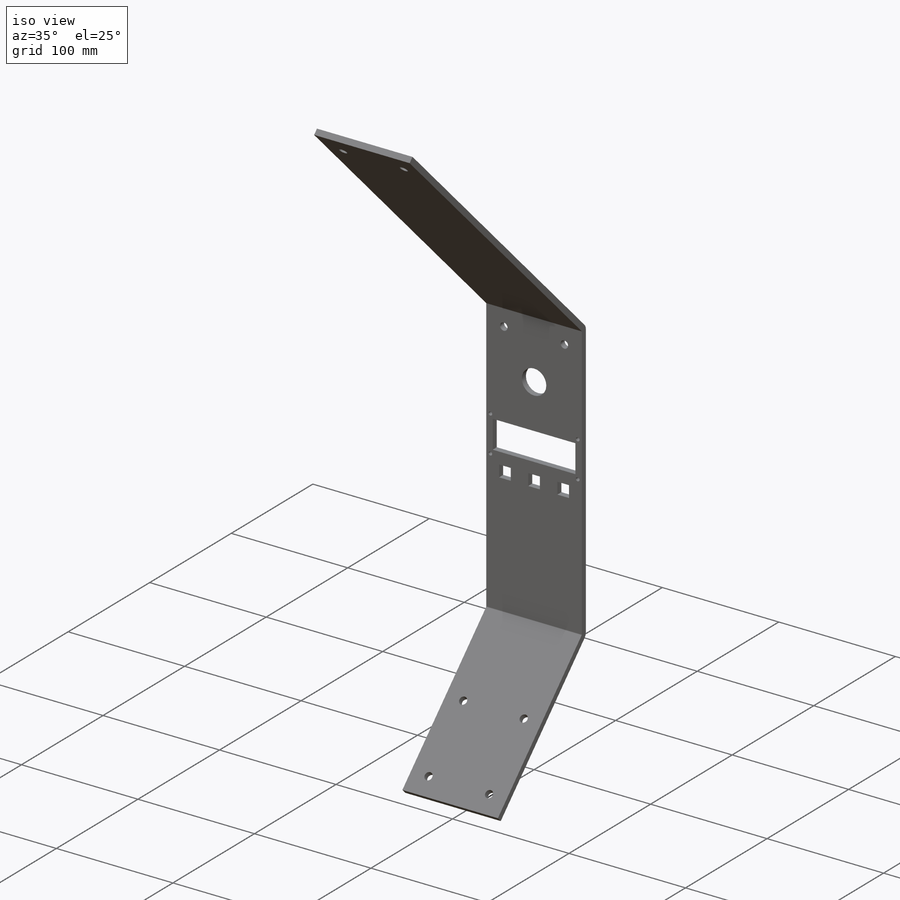
[diagram: iso view]
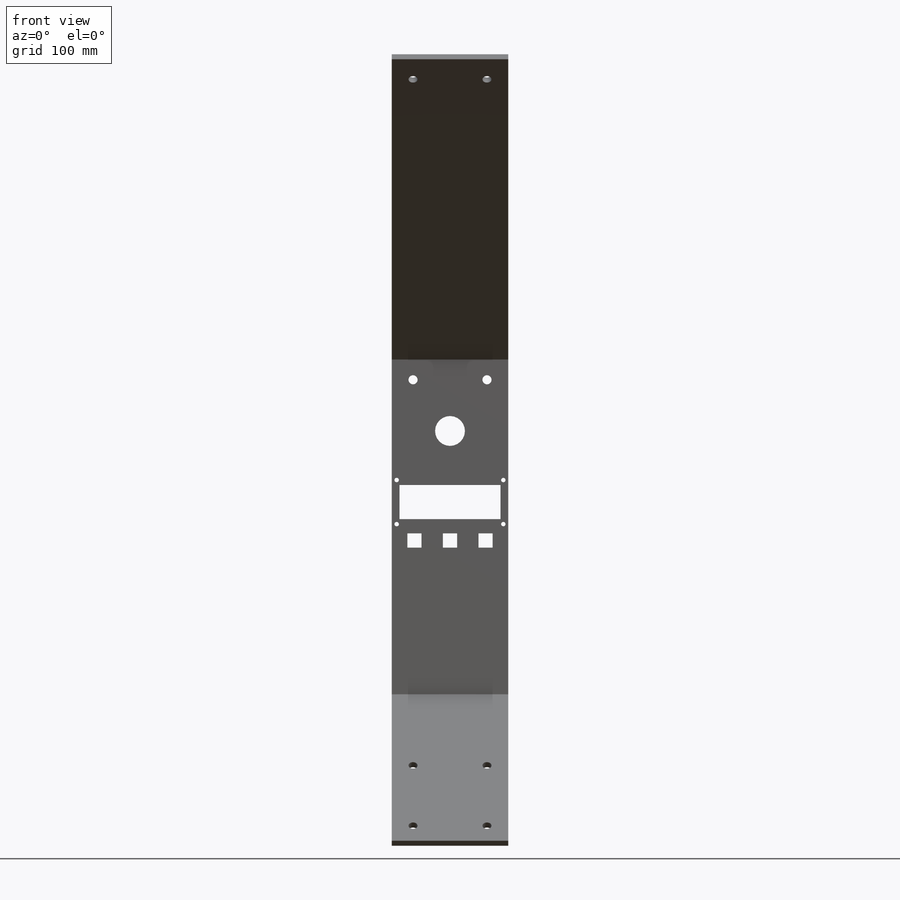
[diagram: front view]
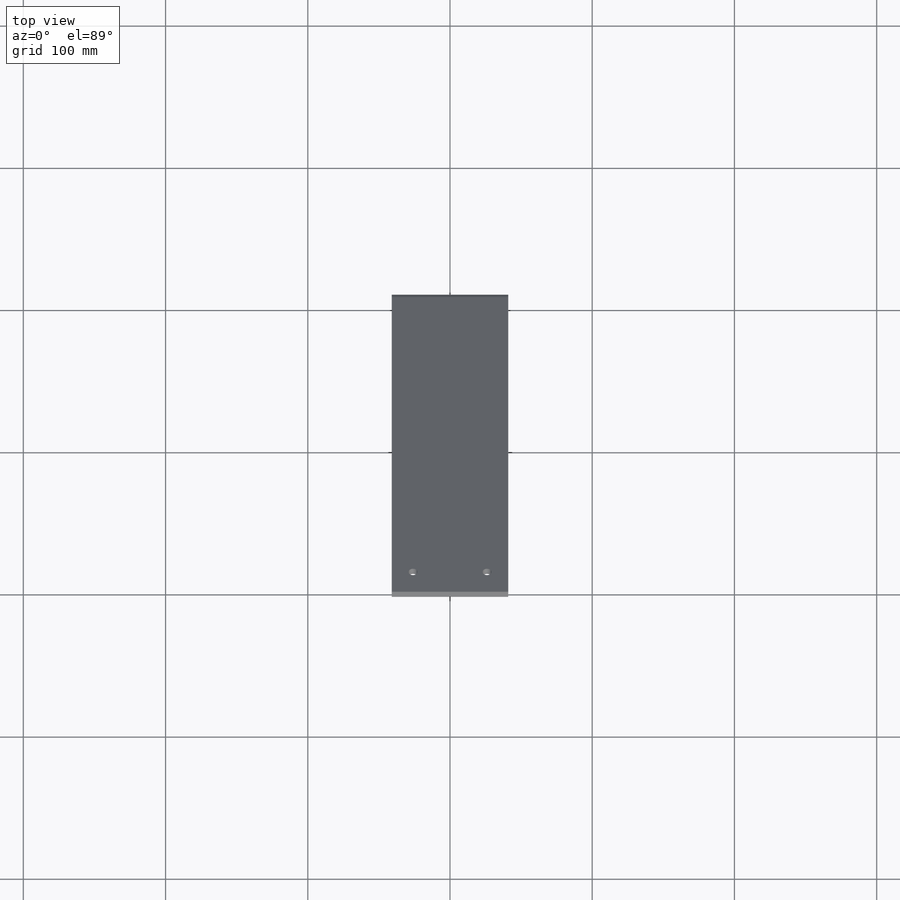
[diagram: top view]
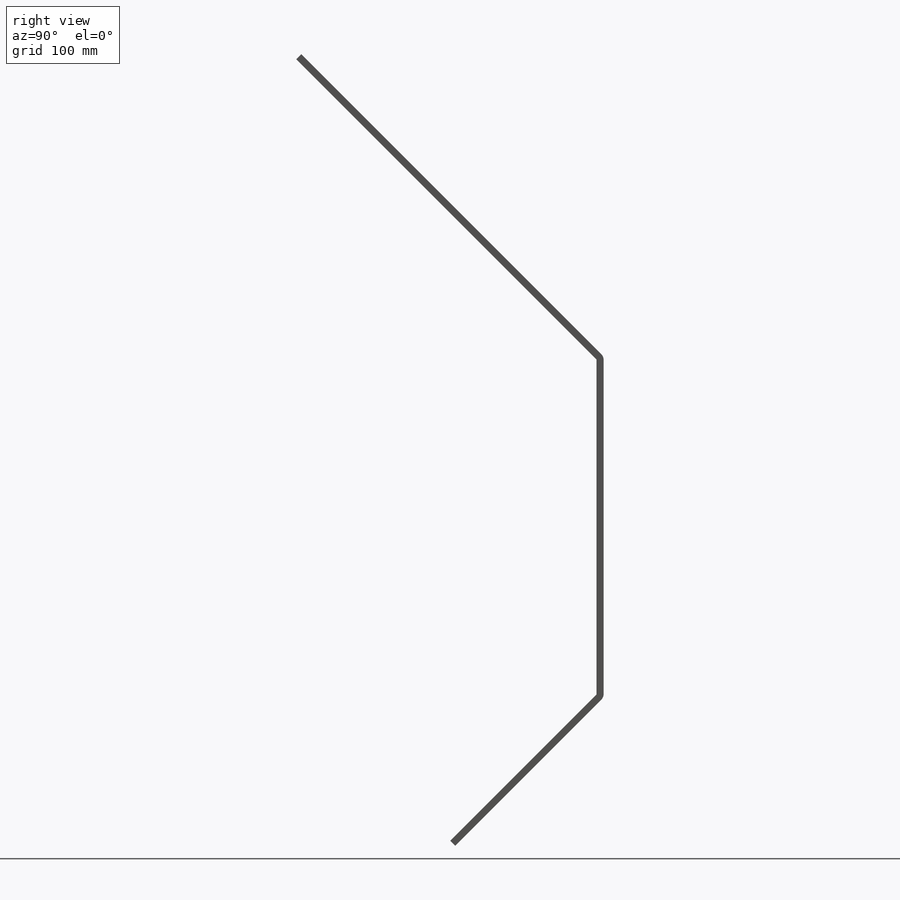
[diagram: right view]
SOLIDWORKS PART (.sldprt)
format: sldprt  version: not decoded by parser v0  size: 364,032 bytes
history: native  units: mm
features: sketch x12, hole x3, sheet_metal_op x2, cut_extrude x2, material x1 + 3 further entries (+12 scaffold rows collapsed; 2 parser-record rows omitted)
feature tree (37):
  scaffold x12  (default folders/planes/origin — collapsed)
  material  "Material <not specified>"
  sketch  "Sketch1"  dims[D1=82.0mm D2=683.5mm]
  sheet_metal_op  "Sheet-Metal1"
  sheet_metal_op  "Base-Flange1"
  sketch  "Sketch4"  dims[D1=146.5mm D2=384.0mm]
  parser-record x2  (decoder bookkeeping rows leaked as tree rows — omitted from the tree; the rows remain in map.json)
  "SketchBend2"
  hole  "M6 Clearance Hole1"  Diameter=6.4mm Depth=5mm
  sketch  "Sketch7"  dims[D1=14.0mm D2=15.0mm D3=15.0mm]
  sketch  "Sketch6"  dims[hole-wizard template sketch: 47 standard entries collapsed; hole parameters kept: c15.Hole Depth=5.0mm c15.D3=~14.816244mm c15.Drill Angle=118.0deg]
  sketch  "Sketch8"  dims[D1=21.0mm D2=50.0mm]
  cut_extrude  "Cut-Extrude1"  [1 undecoded]
  sketch  "Sketch9"  dims[D7=3.1mm D8=3.1mm D9=3.1mm D10=3.1mm D1=24.0mm D2=71.0mm D3=37.5mm D4=37.5mm D5=37.5mm D6=37.5mm D11=15.5mm D12=15.5mm D13=15.5mm D14=15.5mm D15=10.0mm D16=10.0mm D17=25.0mm D18=25.0mm D19=15.0mm D20=10.0mm D21=10.0mm D22=10.0mm D23=10.0mm D24=100.0mm]
  cut_extrude  "Cut-Extrude2"  [1 undecoded]
  hole  "M6 Clearance Hole3"  Diameter=6.4mm Depth=5mm
  sketch  "Sketch11"  dims[D1=15.0mm D2=60.0mm D3=15.0mm D4=15.0mm D5=15.0mm D6=15.0mm]
  sketch  "Sketch10"  dims[hole-wizard template sketch: 47 standard entries collapsed; hole parameters kept: c15.Hole Depth=5.0mm c15.D3=~14.816244mm c15.Drill Angle=118.0deg]
  hole  "M6 Clearance Hole4"  Diameter=6.4mm Depth=5mm
  sketch  "Sketch13"  dims[D1=20.0mm D2=15.0mm D3=15.0mm]
  sketch  "Sketch12"  dims[hole-wizard template sketch: 47 standard entries collapsed; hole parameters kept: c15.Hole Depth=5.0mm c15.D3=~14.816244mm c15.Drill Angle=118.0deg]
  "Flat-Pattern1"
  sketch  "Bend-Lines1"
  sketch  "Bounding-Box1"
  "Flatten-<SketchBend2>1"
decode coverage: 13 of 19 modeling features carry decoded parameters; 3 rows unclassified (native names shown)
note: ~ marks probable driven/reference dimensions
note: 2 parameter values undecoded
note: suppression state not decoded; provenance and decode notes live in map.json
